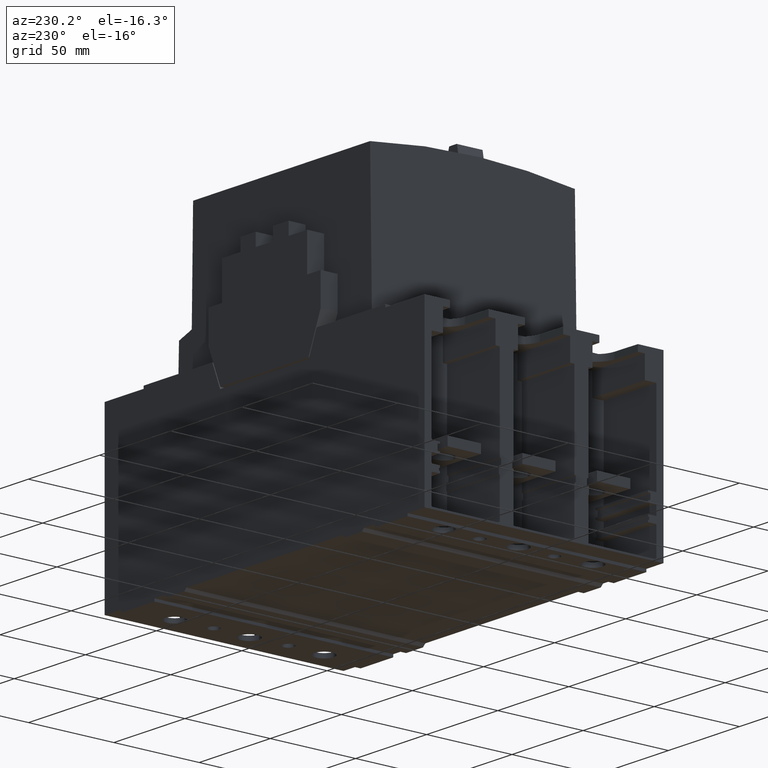
[diagram: clean part render]
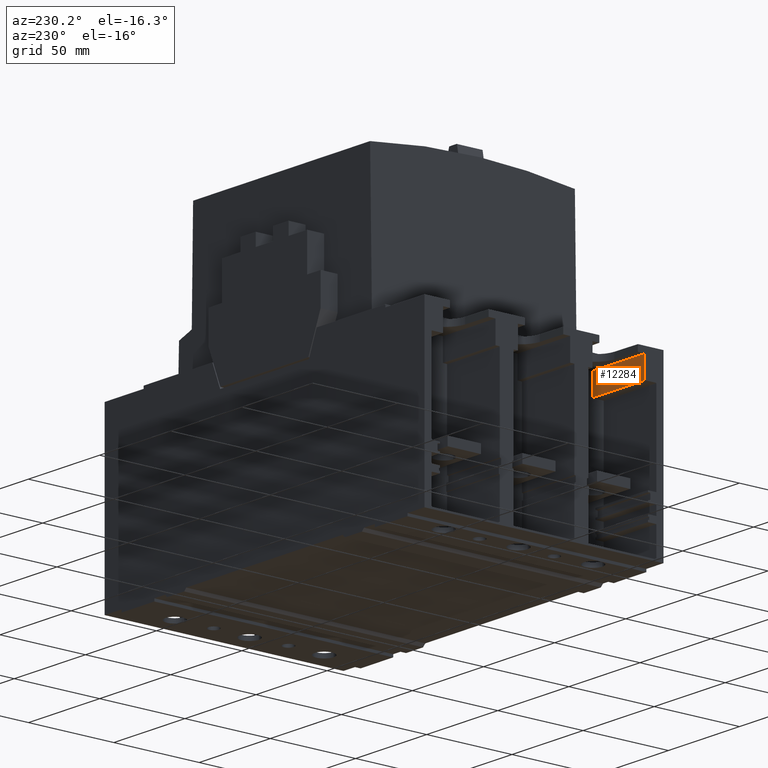
[diagram: same view with one face highlighted and labeled with its STEP entity id]
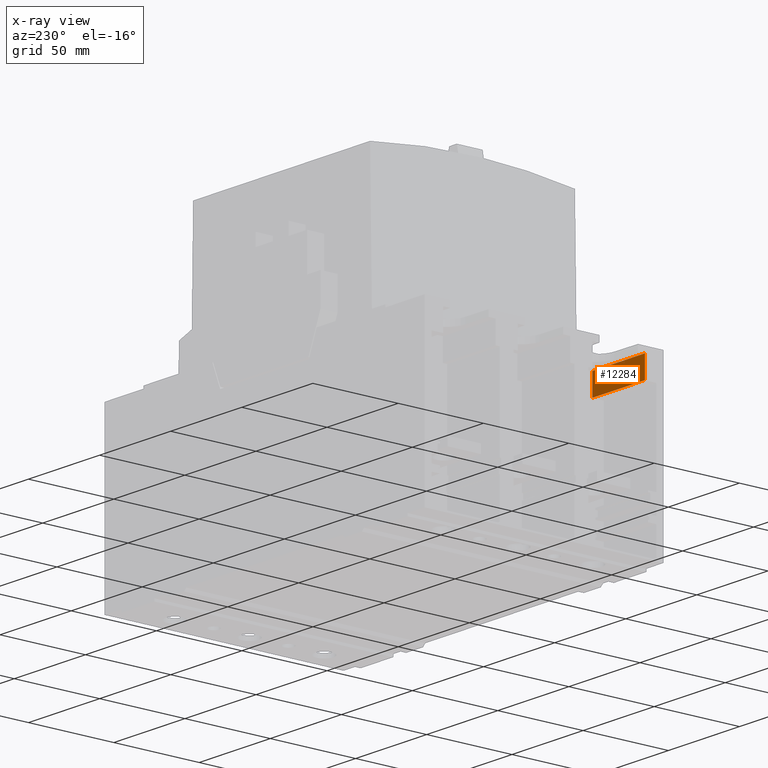
[diagram: x-ray of the same camera — body ghosted, the highlighted face saturated]
A machine part, auxiliary view. The second image highlights one B-rep face of the part: STEP entity #12284.
The next image is the same camera in x-ray: the body ghosted, the highlighted face saturated — about 0% of this face is hidden behind the body in this view.
In plain terms, the highlighted planar face has unit normal (0, -1, 0).
Its self-contained STEP definition (entity closure, byte-faithful):
#2873=DIRECTION('',(0.E0,0.E0,1.E0));
#2874=VECTOR('',#2873,1.256939816439E1);
#2875=CARTESIAN_POINT('',(-1.125441810300E2,-5.908233197810E1,
8.531723944926E1));
#2876=LINE('',#2875,#2874);
#3213=DIRECTION('',(1.E0,0.E0,0.E0));
#3214=VECTOR('',#3213,3.7E1);
#3215=CARTESIAN_POINT('',(-1.125441810300E2,-5.908233197810E1,
9.788663761366E1));
#3216=LINE('',#3215,#3214);
#3242=DIRECTION('',(1.E0,0.E0,0.E0));
#3243=VECTOR('',#3242,3.7E1);
#3244=CARTESIAN_POINT('',(-1.125441810300E2,-5.908233197810E1,
8.531723944926E1));
#3245=LINE('',#3244,#3243);
#4073=DIRECTION('',(0.E0,0.E0,1.E0));
#4074=VECTOR('',#4073,1.256939816439E1);
#4075=CARTESIAN_POINT('',(-7.554418102996E1,-5.908233197810E1,
8.531723944926E1));
#4076=LINE('',#4075,#4074);
#9134=CARTESIAN_POINT('',(-7.554418102996E1,-5.908233197810E1,
9.788663761366E1));
#9136=VERTEX_POINT('',#9134);
#9214=CARTESIAN_POINT('',(-1.125441810300E2,-5.908233197810E1,
9.788663761366E1));
#9216=VERTEX_POINT('',#9214);
#9411=CARTESIAN_POINT('',(-7.554418102996E1,-5.908233197810E1,
8.531723944926E1));
#9412=VERTEX_POINT('',#9411);
#9578=CARTESIAN_POINT('',(-1.125441810300E2,-5.908233197810E1,
8.531723944926E1));
#9579=VERTEX_POINT('',#9578);
#12271=CARTESIAN_POINT('',(-1.125441810300E2,-5.908233197810E1,
8.531723944926E1));
#12272=DIRECTION('',(0.E0,-1.E0,0.E0));
#12273=DIRECTION('',(0.E0,0.E0,1.E0));
#12274=AXIS2_PLACEMENT_3D('',#12271,#12272,#12273);
#12275=PLANE('',#12274);
#12276=ORIENTED_EDGE('',*,*,#11976,.F.);
#12278=ORIENTED_EDGE('',*,*,#12277,.T.);
#12280=ORIENTED_EDGE('',*,*,#12279,.T.);
#12281=ORIENTED_EDGE('',*,*,#12256,.F.);
#12282=EDGE_LOOP('',(#12276,#12278,#12280,#12281));
#12283=FACE_OUTER_BOUND('',#12282,.F.);
#11976=EDGE_CURVE('',#9579,#9216,#2876,.T.);
#12256=EDGE_CURVE('',#9216,#9136,#3216,.T.);
#12277=EDGE_CURVE('',#9579,#9412,#3245,.T.);
#12279=EDGE_CURVE('',#9412,#9136,#4076,.T.);
#12284=ADVANCED_FACE('',(#12283),#12275,.F.);